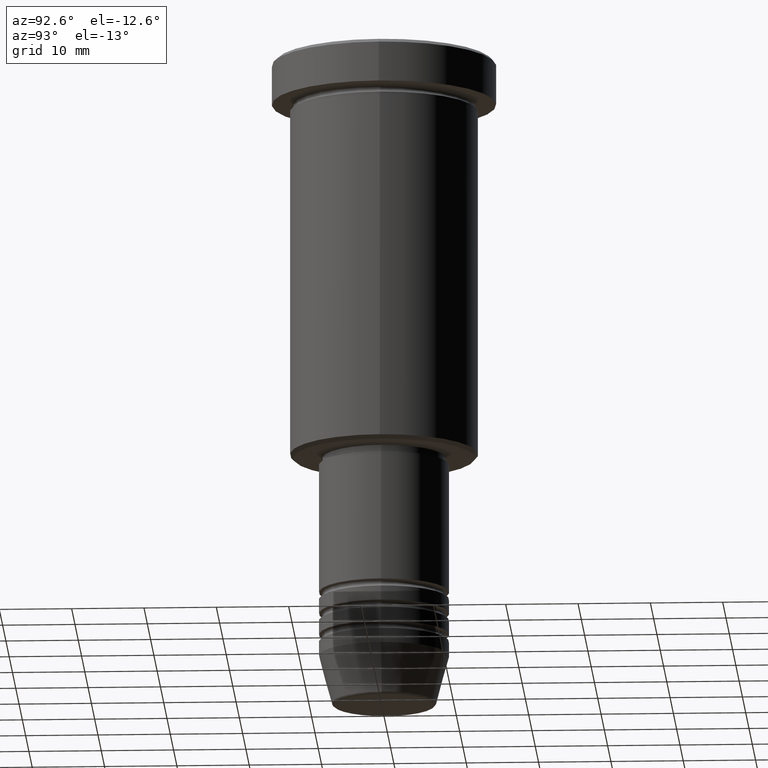
[diagram: clean part render]
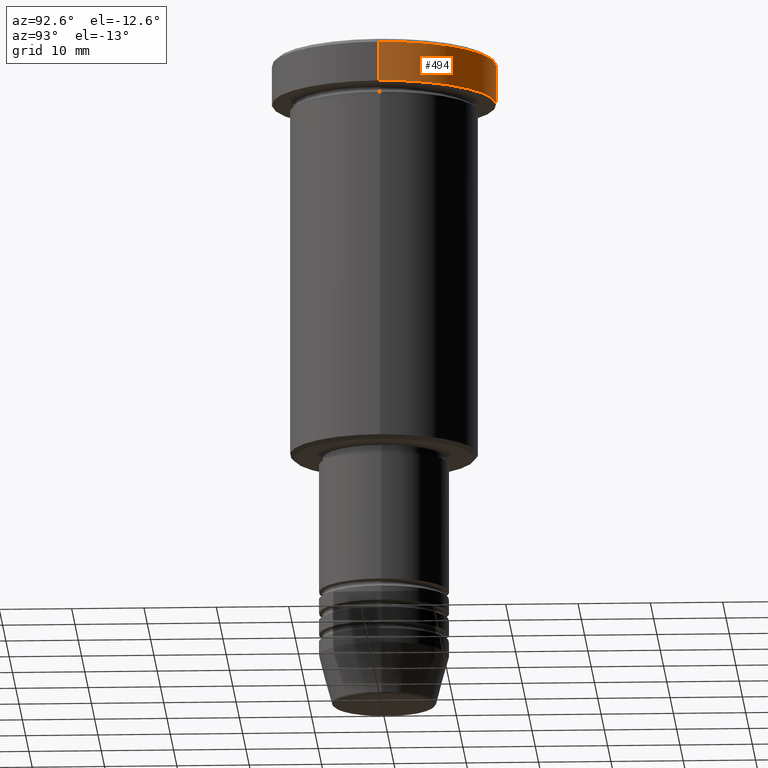
[diagram: same view with one face highlighted and labeled with its STEP entity id]
A machine part, auxiliary view. The second image highlights one B-rep face of the part: STEP entity #494.
In plain terms, the highlighted cylindrical surface (partial cylindrical patch) has radius 15.5 mm, axis along (-0, -0, 1).
Its self-contained STEP definition (entity closure, byte-faithful):
#25 = CIRCLE ( 'NONE', #140, 15.50000000000000000 ) ;
#31 = ORIENTED_EDGE ( 'NONE', *, *, #1026, .T. ) ;
#54 = CARTESIAN_POINT ( 'NONE',  ( -15.50000000000000000, 1.898202538678397557E-15, -5.999999999999995559 ) ) ;
#60 = CARTESIAN_POINT ( 'NONE',  ( -15.50000000000000000, 1.898202538678397557E-15, 0.000000000000000000 ) ) ;
#96 = FACE_OUTER_BOUND ( 'NONE', #166, .T. ) ;
#112 = CARTESIAN_POINT ( 'NONE',  ( 15.50000000000000000, 0.000000000000000000, -5.999999999999995559 ) ) ;
#138 = EDGE_CURVE ( 'NONE', #482, #998, #25, .T. ) ;
#140 = AXIS2_PLACEMENT_3D ( 'NONE', #555, #923, #1094 ) ;
#166 = EDGE_LOOP ( 'NONE', ( #379, #579, #31, #311 ) ) ;
#167 = AXIS2_PLACEMENT_3D ( 'NONE', #912, #993, #182 ) ;
#182 = DIRECTION ( 'NONE',  ( 1.000000000000000000, 0.000000000000000000, 0.000000000000000000 ) ) ;
#248 = VERTEX_POINT ( 'NONE', #509 ) ;
#311 = ORIENTED_EDGE ( 'NONE', *, *, #812, .F. ) ;
#313 = CARTESIAN_POINT ( 'NONE',  ( 0.000000000000000000, 0.000000000000000000, 0.000000000000000000 ) ) ;
#359 = VECTOR ( 'NONE', #701, 1000.000000000000000 ) ;
#379 = ORIENTED_EDGE ( 'NONE', *, *, #138, .T. ) ;
#473 = CARTESIAN_POINT ( 'NONE',  ( 15.50000000000000000, 0.000000000000000000, -0.4999999999999987232 ) ) ;
#476 = DIRECTION ( 'NONE',  ( -0.000000000000000000, -0.000000000000000000, 1.000000000000000000 ) ) ;
#482 = VERTEX_POINT ( 'NONE', #112 ) ;
#486 = CIRCLE ( 'NONE', #167, 15.50000000000000000 ) ;
#492 = CYLINDRICAL_SURFACE ( 'NONE', #690, 15.50000000000000000 ) ;
#494 = ADVANCED_FACE ( 'NONE', ( #96 ), #492, .T. ) ;
#509 = CARTESIAN_POINT ( 'NONE',  ( -15.50000000000000000, 1.898202538678397557E-15, -0.4999999999999987232 ) ) ;
#510 = LINE ( 'NONE', #60, #359 ) ;
#554 = VERTEX_POINT ( 'NONE', #473 ) ;
#555 = CARTESIAN_POINT ( 'NONE',  ( 0.000000000000000000, 0.000000000000000000, -5.999999999999995559 ) ) ;
#579 = ORIENTED_EDGE ( 'NONE', *, *, #903, .T. ) ;
#653 = VECTOR ( 'NONE', #1117, 1000.000000000000000 ) ;
#690 = AXIS2_PLACEMENT_3D ( 'NONE', #313, #476, #1133 ) ;
#701 = DIRECTION ( 'NONE',  ( -0.000000000000000000, -0.000000000000000000, 1.000000000000000000 ) ) ;
#812 = EDGE_CURVE ( 'NONE', #482, #554, #889, .T. ) ;
#889 = LINE ( 'NONE', #1165, #653 ) ;
#903 = EDGE_CURVE ( 'NONE', #998, #248, #510, .T. ) ;
#912 = CARTESIAN_POINT ( 'NONE',  ( 0.000000000000000000, 0.000000000000000000, -0.4999999999999987232 ) ) ;
#923 = DIRECTION ( 'NONE',  ( -0.000000000000000000, -0.000000000000000000, 1.000000000000000000 ) ) ;
#993 = DIRECTION ( 'NONE',  ( 0.000000000000000000, 0.000000000000000000, -1.000000000000000000 ) ) ;
#998 = VERTEX_POINT ( 'NONE', #54 ) ;
#1026 = EDGE_CURVE ( 'NONE', #248, #554, #486, .T. ) ;
#1094 = DIRECTION ( 'NONE',  ( 1.000000000000000000, 0.000000000000000000, 0.000000000000000000 ) ) ;
#1117 = DIRECTION ( 'NONE',  ( -0.000000000000000000, -0.000000000000000000, 1.000000000000000000 ) ) ;
#1133 = DIRECTION ( 'NONE',  ( 1.000000000000000000, 0.000000000000000000, 0.000000000000000000 ) ) ;
#1165 = CARTESIAN_POINT ( 'NONE',  ( 15.50000000000000000, 0.000000000000000000, 0.000000000000000000 ) ) ;